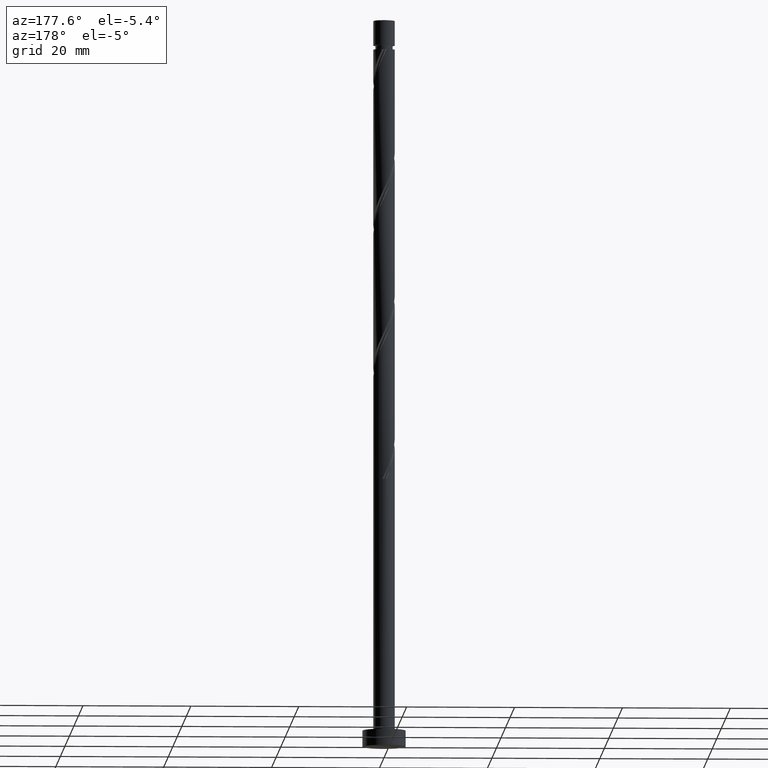
[diagram: clean part render]
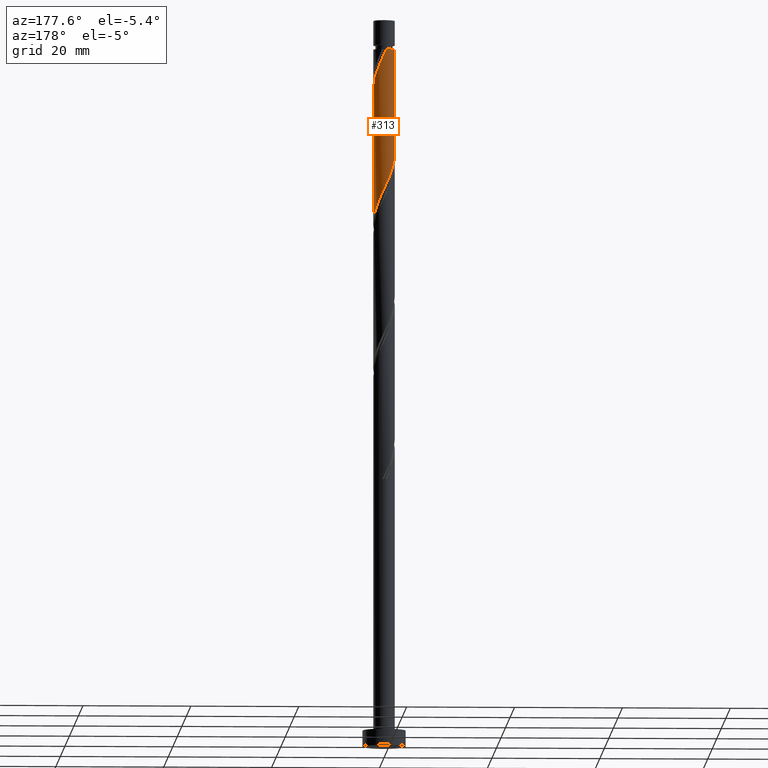
[diagram: same view with one face highlighted and labeled with its STEP entity id]
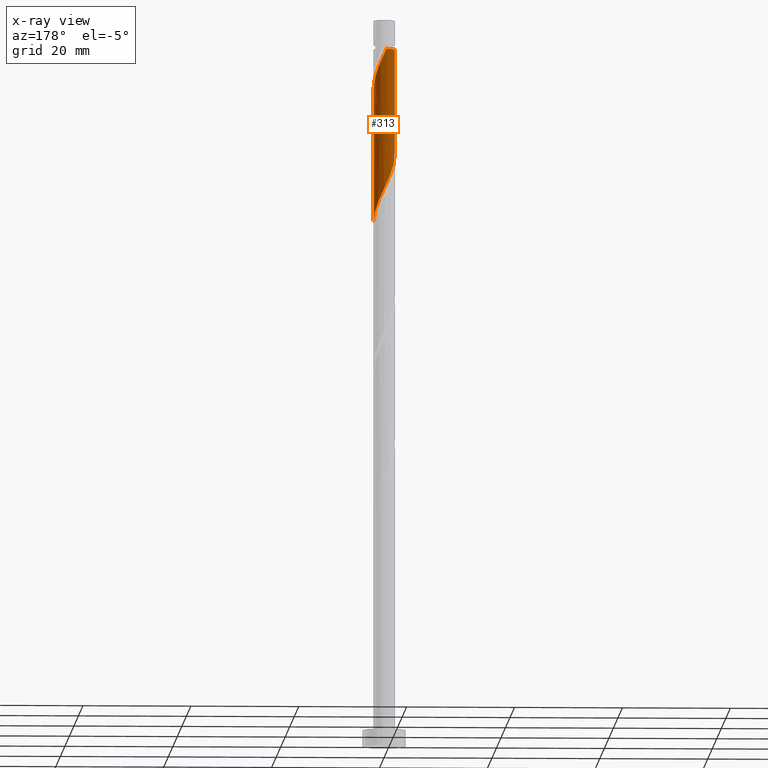
[diagram: x-ray of the same camera — body ghosted, the highlighted face saturated]
A machine part, auxiliary view. The second image highlights one B-rep face of the part: STEP entity #313.
The next image is the same camera in x-ray: the body ghosted, the highlighted face saturated — about 0% of this face is hidden behind the body in this view.
In plain terms, the highlighted cylindrical surface (edge-blend (fillet) strip) has radius 2 mm, axis along (-0, -0, -1).
Its self-contained STEP definition (entity closure, byte-faithful):
#16 = CARTESIAN_POINT ( 'NONE',  ( -1.999999999999996669, 0.000000000000000000, 129.6587008272105095 ) ) ;
#78 = CARTESIAN_POINT ( 'NONE',  ( 1.786663747202085872, 0.9436744384215539627, 124.2041553726650562 ) ) ;
#93 = CARTESIAN_POINT ( 'NONE',  ( -0.1703224295138029143, 1.992734370156874713, 104.2041553726650278 ) ) ;
#136 = CARTESIAN_POINT ( 'NONE',  ( 2.000000000000003109, 0.05755105304764555202, 122.2646776859612032 ) ) ;
#171 = CARTESIAN_POINT ( 'NONE',  ( 1.448427499289745013, 1.408810338760220882, 125.4162765847862886 ) ) ;
#176 = CARTESIAN_POINT ( 'NONE',  ( 1.948211798543800111, 0.4521844623765076121, 98.14354931205897969 ) ) ;
#189 = VERTEX_POINT ( 'NONE', #498 ) ;
#197 = DIRECTION ( 'NONE',  ( -1.000000000000000000, 0.000000000000000000, 0.000000000000000000 ) ) ;
#200 = CARTESIAN_POINT ( 'NONE',  ( 1.883197487972272155, 0.7322950311120136613, 98.74960991811957456 ) ) ;
#212 = CARTESIAN_POINT ( 'NONE',  ( 2.000000000000003553, 8.375819593957977622E-16, 122.1425796812429780 ) ) ;
#229 = DIRECTION ( 'NONE',  ( -0.000000000000000000, -0.000000000000000000, -1.000000000000000000 ) ) ;
#235 = CARTESIAN_POINT ( 'NONE',  ( 2.000000000000000000, 2.449293598294706414E-16, 135.0000000000000000 ) ) ;
#240 = AXIS2_PLACEMENT_3D ( 'NONE', #1508, #229, #1437 ) ;
#241 = ORIENTED_EDGE ( 'NONE', *, *, #310, .F. ) ;
#245 = EDGE_CURVE ( 'NONE', #297, #1600, #1580, .T. ) ;
#291 = EDGE_LOOP ( 'NONE', ( #241, #971, #1500, #1388, #594 ) ) ;
#297 = VERTEX_POINT ( 'NONE', #16 ) ;
#310 = EDGE_CURVE ( 'NONE', #1646, #1600, #896, .T. ) ;
#313 = ADVANCED_FACE ( 'NONE', ( #1327 ), #941, .T. ) ;
#434 = AXIS2_PLACEMENT_3D ( 'NONE', #1070, #582, #197 ) ;
#453 = CARTESIAN_POINT ( 'NONE',  ( -0.4568343776401060374, 1.968245701812300963, 104.8102159787256795 ) ) ;
#498 = CARTESIAN_POINT ( 'NONE',  ( -2.000000000000000888, 1.420897966832164405E-15, 110.5081553065113980 ) ) ;
#554 = CARTESIAN_POINT ( 'NONE',  ( 1.617545623245914665, 1.176242388590887034, 124.8102159787256511 ) ) ;
#562 = CARTESIAN_POINT ( 'NONE',  ( -1.786663747202082542, 0.9436744384215538517, 108.4465796150893055 ) ) ;
#570 = CARTESIAN_POINT ( 'NONE',  ( -2.000000000000000888, 1.420897966832164405E-15, 110.5081553065113980 ) ) ;
#576 = CARTESIAN_POINT ( 'NONE',  ( -1.617545623245912001, 1.176242388590886812, 107.8405190090286823 ) ) ;
#582 = DIRECTION ( 'NONE',  ( -0.000000000000000000, -0.000000000000000000, -1.000000000000000000 ) ) ;
#586 = CARTESIAN_POINT ( 'NONE',  ( 0.9340691933046018081, 1.768478086411955363, 101.7799129484226341 ) ) ;
#587 = CARTESIAN_POINT ( 'NONE',  ( -0.3979949748426614420, 1.960000000000001741, 129.6587008272105379 ) ) ;
#594 = ORIENTED_EDGE ( 'NONE', *, *, #245, .T. ) ;
#597 = CARTESIAN_POINT ( 'NONE',  ( 1.741900447066338176, 0.9827425057002943110, 99.35567052418021206 ) ) ;
#646 = CARTESIAN_POINT ( 'NONE',  ( 1.996690616564942733, 0.1150068768444760664, 122.3859735544832290 ) ) ;
#707 = CARTESIAN_POINT ( 'NONE',  ( -0.7248413235775366115, 1.864029252891264532, 105.4162765847862460 ) ) ;
#711 = CARTESIAN_POINT ( 'NONE',  ( 0.9928482695149686288, 1.759812803970229877, 126.6283977969075210 ) ) ;
#722 = CARTESIAN_POINT ( 'NONE',  ( 2.000000000000000444, -1.854645767233561682E-15, 97.17482197317805515 ) ) ;
#760 = CARTESIAN_POINT ( 'NONE',  ( 2.000000000000003553, 8.375819593957977622E-16, 122.1425796812429780 ) ) ;
#799 = LINE ( 'NONE', #1324, #1514 ) ;
#801 = CARTESIAN_POINT ( 'NONE',  ( 1.220637884402356210, 1.584311571365225380, 126.0223371908468977 ) ) ;
#829 = CARTESIAN_POINT ( 'NONE',  ( 0.6798004310727960853, 1.902776961498552355, 102.3859735544832148 ) ) ;
#842 = DIRECTION ( 'NONE',  ( -0.000000000000000000, -0.000000000000000000, -1.000000000000000000 ) ) ;
#896 =( BOUNDED_CURVE ( )  B_SPLINE_CURVE ( 2, ( #760, #136, #646, #1166, #1466, #78, #554, #171, #801, #711, #1065, #1333, #1339, #1583, #1319 ),
 .UNSPECIFIED., .F., .T. ) 
 B_SPLINE_CURVE_WITH_KNOTS ( ( 3, 2, 2, 2, 2, 2, 2, 3 ),
 ( 0.6795252162417514397, 0.6818181818181818787, 0.6931818181818181213, 0.7045454545454545858, 0.7159090909090907173, 0.7272727272727271819, 0.7386363636363635354, 0.7499999999999998890 ),
 .UNSPECIFIED. ) 
 CURVE ( )  GEOMETRIC_REPRESENTATION_ITEM ( )  RATIONAL_B_SPLINE_CURVE ( ( 0.9061101570135620120, 0.9072237824201441203, 0.9090909090909216062, 0.8998376744372238445, 0.9090909090909216062, 0.8998376744372238445, 0.9090909090909216062, 0.8998376744372238445, 0.9090909090909216062, 0.8998376744372238445, 0.9090909090909216062, 0.8998376744372238445, 0.9090909090909216062, 0.8998376744372239555, 0.9090909090909214951 ) ) 
 REPRESENTATION_ITEM ( '' )  );
#917 = CARTESIAN_POINT ( 'NONE',  ( 2.000000000000000444, -1.854645767233561682E-15, 97.17482197317805515 ) ) ;
#941 = CYLINDRICAL_SURFACE ( 'NONE', #434, 2.000000000000000000 ) ;
#965 = LINE ( 'NONE', #235, #1341 ) ;
#971 = ORIENTED_EDGE ( 'NONE', *, *, #1625, .T. ) ;
#1003 = VERTEX_POINT ( 'NONE', #917 ) ;
#1040 = DIRECTION ( 'NONE',  ( -0.000000000000000000, -0.000000000000000000, -1.000000000000000000 ) ) ;
#1065 = CARTESIAN_POINT ( 'NONE',  ( 0.7248413235775373886, 1.864029252891266530, 127.2344584029681016 ) ) ;
#1070 = CARTESIAN_POINT ( 'NONE',  ( 0.000000000000000000, 0.000000000000000000, 135.0000000000000000 ) ) ;
#1075 = CARTESIAN_POINT ( 'NONE',  ( 1.394470680848405975, 1.433684595806966389, 100.5677917363014160 ) ) ;
#1082 = CARTESIAN_POINT ( 'NONE',  ( -1.996690616564940512, 0.1150068768444766493, 110.2647614332711612 ) ) ;
#1110 = CARTESIAN_POINT ( 'NONE',  ( -1.883409435608316862, 0.6728810428757542317, 109.0526402211499004 ) ) ;
#1166 = CARTESIAN_POINT ( 'NONE',  ( 1.980155124014554291, 0.4020876473299547227, 122.9920341605438665 ) ) ;
#1198 =( BOUNDED_CURVE ( )  B_SPLINE_CURVE ( 2, ( #570, #1490, #1082, #1216, #1110, #562, #576, #1621, #1233, #1468, #707, #453, #93, #1244, #1359, #829, #586, #1601, #1075, #1226, #597, #200, #176, #1593, #722 ),
 .UNSPECIFIED., .F., .T. ) 
 B_SPLINE_CURVE_WITH_KNOTS ( ( 3, 2, 2, 2, 2, 2, 2, 2, 2, 2, 2, 2, 3 ),
 ( 0.4295252162417513841, 0.4318181818181818232, 0.4431818181818181768, 0.4545454545454545303, 0.4659090909090908839, 0.4772727272727272929, 0.4886363636363636465, 0.5000000000000000000, 0.5113636363636363535, 0.5227272727272727071, 0.5340909090909090606, 0.5454545454545454142, 0.5545252162417515507 ),
 .UNSPECIFIED. ) 
 CURVE ( )  GEOMETRIC_REPRESENTATION_ITEM ( )  RATIONAL_B_SPLINE_CURVE ( ( 0.9061101570135572381, 0.9072237824201393463, 0.9090909090909168322, 0.8998376744372191816, 0.9090909090909168322, 0.8998376744372191816, 0.9090909090909168322, 0.8998376744372191816, 0.9090909090909168322, 0.8998376744372191816, 0.9090909090909168322, 0.8998376744372191816, 0.9090909090909168322, 0.8998376744372191816, 0.9090909090909168322, 0.8998376744372191816, 0.9090909090909168322, 0.8998376744372191816, 0.9090909090909168322, 0.8998376744372191816, 0.9090909090909168322, 0.8998376744372191816, 0.9090909090909168322, 0.9017048011079964454, 0.9061101570135574601 ) ) 
 REPRESENTATION_ITEM ( '' )  );
#1216 = CARTESIAN_POINT ( 'NONE',  ( -1.980155124014551626, 0.4020876473299547782, 109.6587008272105095 ) ) ;
#1226 = CARTESIAN_POINT ( 'NONE',  ( 1.600603406160404418, 1.233189980288573517, 99.96173113024082113 ) ) ;
#1233 = CARTESIAN_POINT ( 'NONE',  ( -1.220637884402354656, 1.584311571365223825, 106.6283977969074925 ) ) ;
#1242 = EDGE_CURVE ( 'NONE', #297, #189, #799, .T. ) ;
#1244 = CARTESIAN_POINT ( 'NONE',  ( 0.1161895186125001117, 2.017223038501448684, 103.5980947666044187 ) ) ;
#1309 = EDGE_CURVE ( 'NONE', #189, #1003, #1198, .T. ) ;
#1319 = CARTESIAN_POINT ( 'NONE',  ( -0.3979949748426614420, 1.960000000000001741, 129.6587008272105379 ) ) ;
#1324 = CARTESIAN_POINT ( 'NONE',  ( -2.000000000000000000, 0.000000000000000000, 135.0000000000000000 ) ) ;
#1327 = FACE_OUTER_BOUND ( 'NONE', #291, .T. ) ;
#1333 = CARTESIAN_POINT ( 'NONE',  ( 0.4568343776401070921, 1.968245701812303627, 127.8405190090286538 ) ) ;
#1339 = CARTESIAN_POINT ( 'NONE',  ( 0.1703224295138035527, 1.992734370156876933, 128.4465796150892913 ) ) ;
#1341 = VECTOR ( 'NONE', #842, 1000.000000000000000 ) ;
#1359 = CARTESIAN_POINT ( 'NONE',  ( 0.3979949748426483414, 1.960000000000000409, 102.9920341605438097 ) ) ;
#1388 = ORIENTED_EDGE ( 'NONE', *, *, #1242, .F. ) ;
#1437 = DIRECTION ( 'NONE',  ( -1.000000000000000000, 0.000000000000000000, 0.000000000000000000 ) ) ;
#1466 = CARTESIAN_POINT ( 'NONE',  ( 1.883409435608319304, 0.6728810428757541207, 123.5980947666044472 ) ) ;
#1468 = CARTESIAN_POINT ( 'NONE',  ( -0.9928482695149676296, 1.759812803970227879, 106.0223371908468977 ) ) ;
#1490 = CARTESIAN_POINT ( 'NONE',  ( -2.000000000000000888, 0.05755105304764553814, 110.3860573017931870 ) ) ;
#1500 = ORIENTED_EDGE ( 'NONE', *, *, #1309, .F. ) ;
#1508 = CARTESIAN_POINT ( 'NONE',  ( 0.000000000000000000, 0.000000000000000000, 129.6587008272105095 ) ) ;
#1514 = VECTOR ( 'NONE', #1040, 1000.000000000000000 ) ;
#1580 = CIRCLE ( 'NONE', #240, 1.999999999999996669 ) ;
#1583 = CARTESIAN_POINT ( 'NONE',  ( -0.1161895186124968782, 2.017223038501450905, 129.0526402211498862 ) ) ;
#1593 = CARTESIAN_POINT ( 'NONE',  ( 2.000000000000002220, 0.2290578547702390444, 97.66078192614938303 ) ) ;
#1600 = VERTEX_POINT ( 'NONE', #587 ) ;
#1601 = CARTESIAN_POINT ( 'NONE',  ( 1.188337955536407531, 1.634179211325359038, 101.1738523423620109 ) ) ;
#1621 = CARTESIAN_POINT ( 'NONE',  ( -1.448427499289741904, 1.408810338760219993, 107.2344584029680732 ) ) ;
#1625 = EDGE_CURVE ( 'NONE', #1646, #1003, #965, .T. ) ;
#1646 = VERTEX_POINT ( 'NONE', #212 ) ;